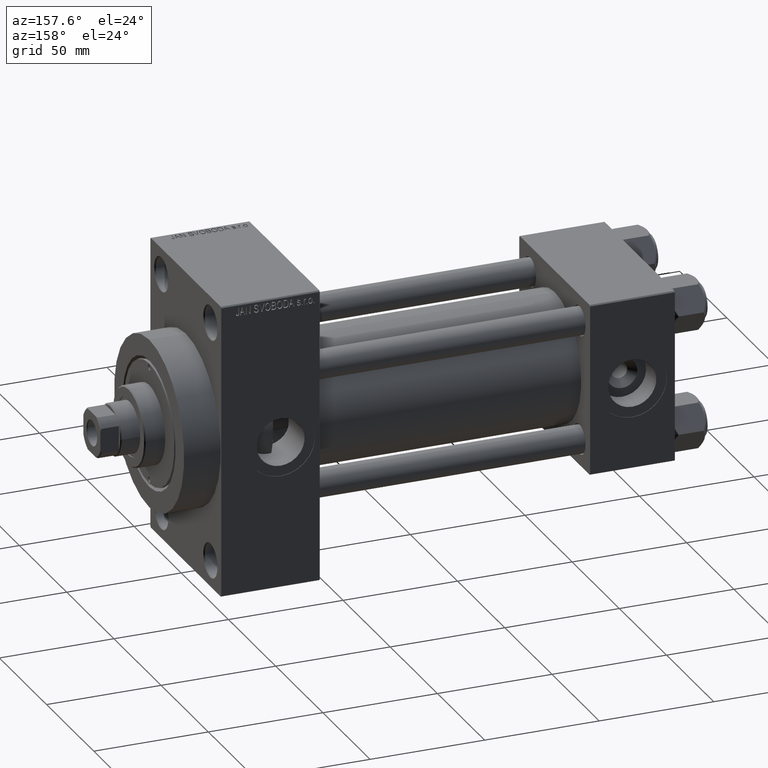
[diagram: clean part render]
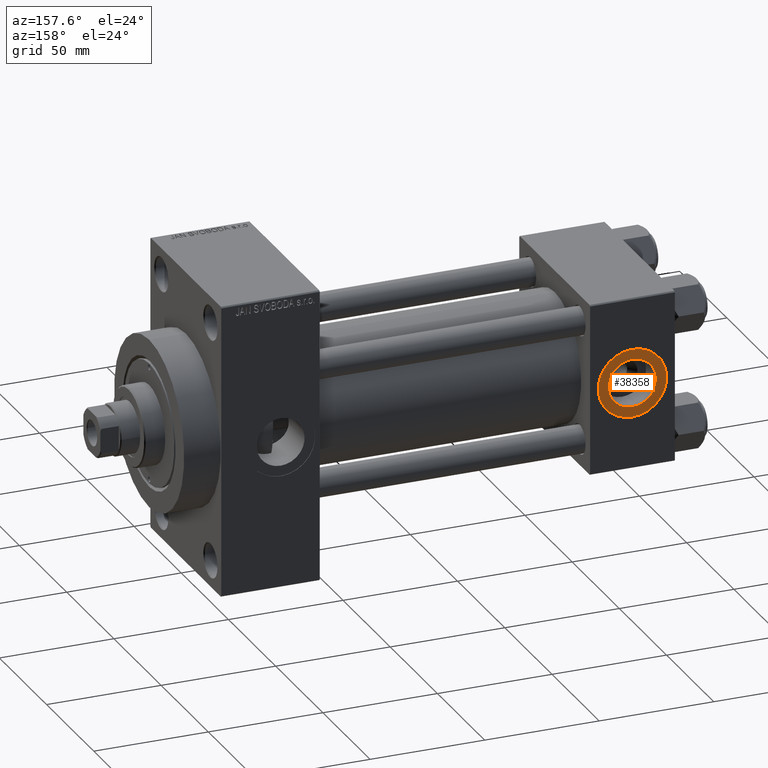
[diagram: same view with one face highlighted and labeled with its STEP entity id]
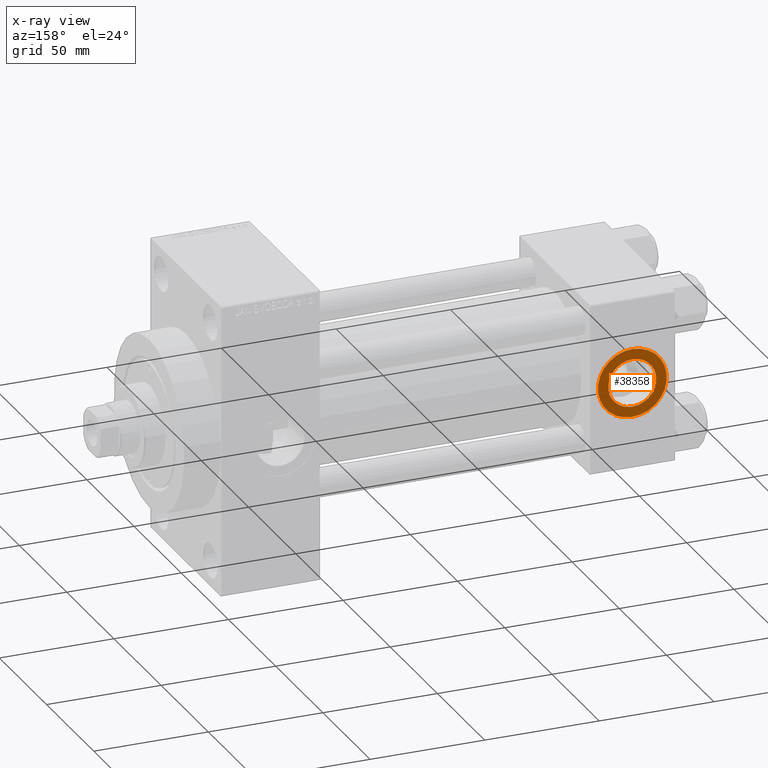
[diagram: x-ray of the same camera — body ghosted, the highlighted face saturated]
A machine part, auxiliary view. The second image highlights one B-rep face of the part: STEP entity #38358.
The next image is the same camera in x-ray: the body ghosted, the highlighted face saturated — about 0% of this face is hidden behind the body in this view.
In plain terms, the highlighted planar face has unit normal (0, 1, 0).
Its self-contained STEP definition (entity closure, byte-faithful):
#821 = DIRECTION ( 'NONE',  ( 0.000000000000000000, 1.000000000000000000, 0.000000000000000000 ) ) ;
#3270 = CARTESIAN_POINT ( 'NONE',  ( 18.50000000000000355, 37.29999999999999005, -15.00000000000000178 ) ) ;
#3836 = EDGE_LOOP ( 'NONE', ( #41954, #10867 ) ) ;
#4404 = CIRCLE ( 'NONE', #31219, 15.00000000000000178 ) ;
#6834 = FACE_OUTER_BOUND ( 'NONE', #3836, .T. ) ;
#7462 = DIRECTION ( 'NONE',  ( 0.000000000000000000, 0.000000000000000000, 1.000000000000000000 ) ) ;
#10266 = AXIS2_PLACEMENT_3D ( 'NONE', #39716, #40421, #35885 ) ;
#10466 = DIRECTION ( 'NONE',  ( 0.000000000000000000, 1.000000000000000000, 0.000000000000000000 ) ) ;
#10867 = ORIENTED_EDGE ( 'NONE', *, *, #33230, .T. ) ;
#11060 = CARTESIAN_POINT ( 'NONE',  ( 18.50000000000000000, 37.29999999999999005, 0.000000000000000000 ) ) ;
#11121 = CARTESIAN_POINT ( 'NONE',  ( 18.50000000000000000, 37.29999999999999005, 10.48000000000000043 ) ) ;
#13172 = AXIS2_PLACEMENT_3D ( 'NONE', #43315, #10466, #17911 ) ;
#14777 = EDGE_LOOP ( 'NONE', ( #47448, #22275 ) ) ;
#17825 = CIRCLE ( 'NONE', #30835, 10.48000000000000043 ) ;
#17911 = DIRECTION ( 'NONE',  ( 0.000000000000000000, 0.000000000000000000, 1.000000000000000000 ) ) ;
#20579 = DIRECTION ( 'NONE',  ( 0.000000000000000000, 0.000000000000000000, 1.000000000000000000 ) ) ;
#21486 = CARTESIAN_POINT ( 'NONE',  ( 18.50000000000000000, 37.29999999999999005, 0.000000000000000000 ) ) ;
#21795 = CIRCLE ( 'NONE', #10266, 10.48000000000000043 ) ;
#21919 = VERTEX_POINT ( 'NONE', #24326 ) ;
#22248 = CARTESIAN_POINT ( 'NONE',  ( 18.50000000000000000, 37.29999999999999005, 15.00000000000000178 ) ) ;
#22275 = ORIENTED_EDGE ( 'NONE', *, *, #38101, .F. ) ;
#24326 = CARTESIAN_POINT ( 'NONE',  ( 18.50000000000000000, 37.29999999999999005, -10.48000000000000043 ) ) ;
#25607 = AXIS2_PLACEMENT_3D ( 'NONE', #21486, #821, #33694 ) ;
#25709 = DIRECTION ( 'NONE',  ( 0.000000000000000000, 1.000000000000000000, 0.000000000000000000 ) ) ;
#27480 = EDGE_CURVE ( 'NONE', #37845, #42207, #4404, .T. ) ;
#28012 = DIRECTION ( 'NONE',  ( 0.000000000000000000, 1.000000000000000000, 0.000000000000000000 ) ) ;
#30835 = AXIS2_PLACEMENT_3D ( 'NONE', #11060, #25709, #7462 ) ;
#31219 = AXIS2_PLACEMENT_3D ( 'NONE', #35443, #28012, #20579 ) ;
#32764 = PLANE ( 'NONE',  #25607 ) ;
#33230 = EDGE_CURVE ( 'NONE', #42207, #37845, #33881, .T. ) ;
#33694 = DIRECTION ( 'NONE',  ( 0.000000000000000000, -0.000000000000000000, 1.000000000000000000 ) ) ;
#33767 = EDGE_CURVE ( 'NONE', #44805, #21919, #17825, .T. ) ;
#33881 = CIRCLE ( 'NONE', #13172, 15.00000000000000178 ) ;
#35443 = CARTESIAN_POINT ( 'NONE',  ( 18.50000000000000000, 37.29999999999999005, 0.000000000000000000 ) ) ;
#35885 = DIRECTION ( 'NONE',  ( 0.000000000000000000, 0.000000000000000000, 1.000000000000000000 ) ) ;
#37845 = VERTEX_POINT ( 'NONE', #22248 ) ;
#38101 = EDGE_CURVE ( 'NONE', #21919, #44805, #21795, .T. ) ;
#38358 = ADVANCED_FACE ( 'NONE', ( #43039, #6834 ), #32764, .T. ) ;
#39716 = CARTESIAN_POINT ( 'NONE',  ( 18.50000000000000000, 37.29999999999999005, 0.000000000000000000 ) ) ;
#40421 = DIRECTION ( 'NONE',  ( 0.000000000000000000, 1.000000000000000000, 0.000000000000000000 ) ) ;
#41954 = ORIENTED_EDGE ( 'NONE', *, *, #27480, .T. ) ;
#42207 = VERTEX_POINT ( 'NONE', #3270 ) ;
#43039 = FACE_BOUND ( 'NONE', #14777, .T. ) ;
#43315 = CARTESIAN_POINT ( 'NONE',  ( 18.50000000000000000, 37.29999999999999005, 0.000000000000000000 ) ) ;
#44805 = VERTEX_POINT ( 'NONE', #11121 ) ;
#47448 = ORIENTED_EDGE ( 'NONE', *, *, #33767, .F. ) ;